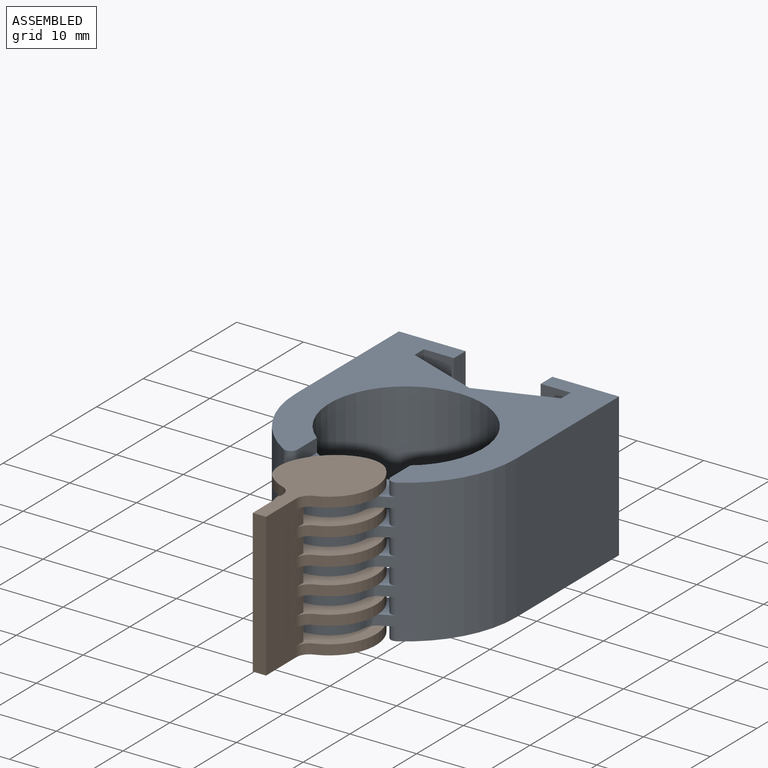
[diagram: assembled view]
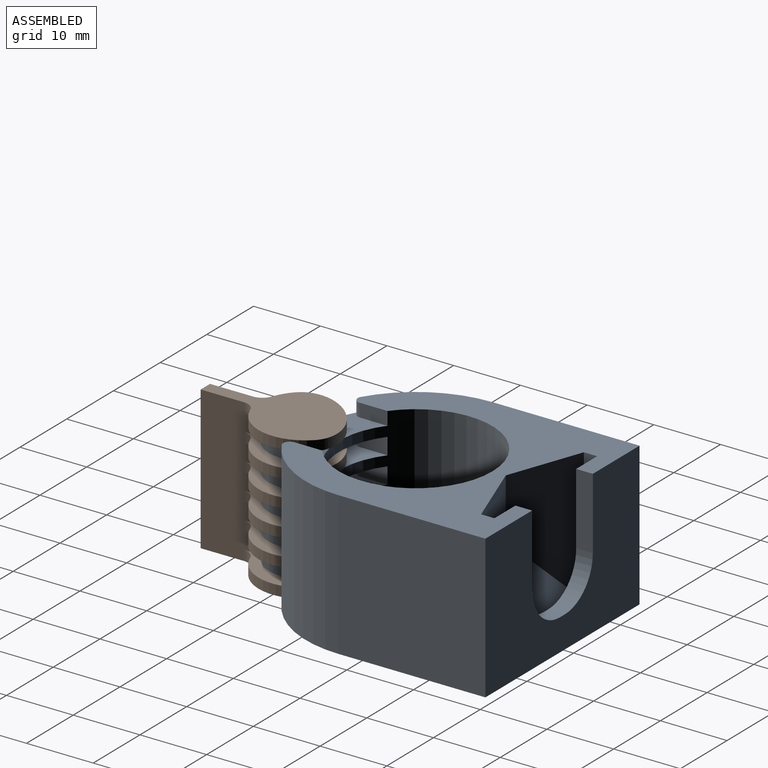
[diagram: assembled view, second angle]
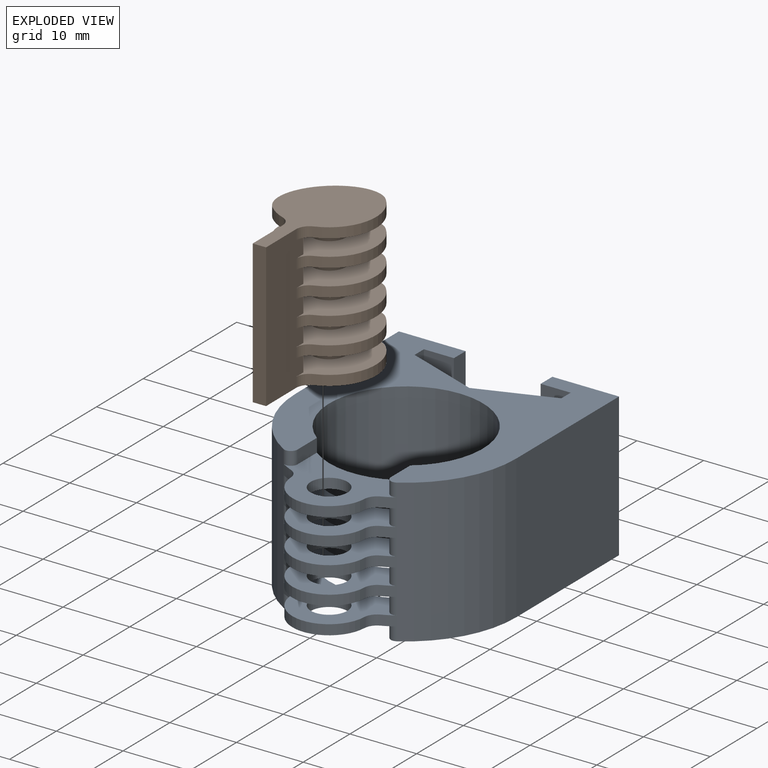
[diagram: exploded view]
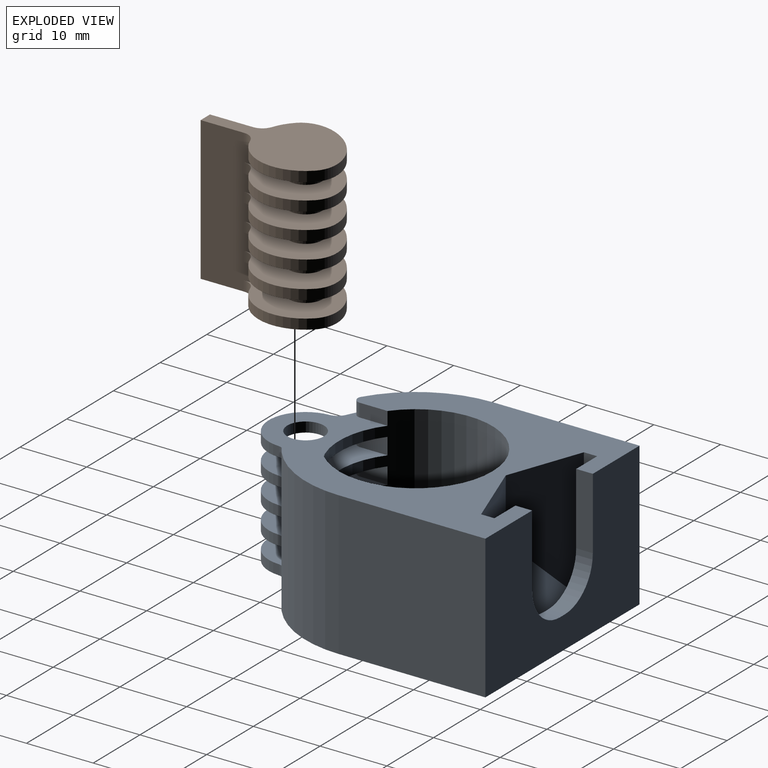
[diagram: exploded view, second angle]
ASSEMBLY  parts=2 mates=2
PART A: 74 faces, bbox 33x44x21.5 mm
  f0: plane 36.28x33mm, normal (0,0,-1), area 663.4mm2, adj f7,f13,f14,f35,f36,f52,f53,f54
  f1: plane 36.28x33mm, normal (0,0,1), area 542.9mm2, adj f3,f4,f7,f13,f14,f16,f17,f50
  f2: cylinder r=6mm len=6mm, axis (0,-1,0), area 23.6mm2, adj f3,f6,f56,f57
  f3: plane 10.75x2.5mm, normal (1,0,0), area 26.9mm2, adj f1,f2,f56,f57
  f4: plane 10.75x2.5mm, normal (-1,0,0), area 26.9mm2, adj f1,f5,f56,f57
  f5: cylinder r=6mm len=6mm, axis (0,-1,0), area 23.6mm2, adj f4,f6,f56,f57
  f6: plane 2.5x1mm, normal (0,0,1), area 2.5mm2, adj f2,f5,f56,f57
  f7: cylinder r=16.5mm len=21.5mm, axis (0,0,-1), area 380.4mm2, adj f0,f1,f15,f19,f21,f23,f25,f26
  f8: cylinder r=5.5mm len=10.98mm, axis (0,0,-1), area 25mm2, adj f31,f34,f61,f65
  f9: cylinder r=5.5mm len=10.98mm, axis (0,0,-1), area 25mm2, adj f28,f33,f62,f66
  f10: cylinder r=5.5mm len=10.98mm, axis (0,0,-1), area 25mm2, adj f23,f26,f63,f67
  f11: cylinder r=5.5mm len=10.98mm, axis (0,0,-1), area 25mm2, adj f21,f25,f64,f68
  f12: cylinder r=5.5mm len=10.98mm, axis (0,0,-1), area 25mm2, adj f15,f19,f69,f70
  f13: cylinder r=16.5mm len=21.5mm, axis (0,0,-1), area 380.4mm2, adj f0,f1,f15,f19,f21,f23,f25,f26
  f14: cylinder r=11.5mm len=23mm, axis (0,0,-1), area 1342.8mm2, adj f0,f1,f15,f16,f17,f18,f19,f20
  f15: plane 17.03x12.88mm, normal (0,0,1), area 102.6mm2, adj f7,f12,f13,f14,f16,f17,f37,f50
  f16: plane 4.15x2mm, normal (1,0,0), area 8.3mm2, adj f1,f14,f15,f50
  f17: plane 4.15x2mm, normal (-1,0,0), area 8.3mm2, adj f1,f14,f15,f51
  f18: plane 4.15x2.5mm, normal (-1,0,0), area 10.4mm2, adj f14,f19,f21,f49
  f19: plane 17.03x12.88mm, normal (0,0,-1), area 102.6mm2, adj f7,f12,f13,f14,f18,f20,f37,f48
  f20: plane 4.15x2.5mm, normal (1,0,0), area 10.4mm2, adj f14,f19,f21,f48
  f21: plane 17.03x12.88mm, normal (0,0,1), area 102.6mm2, adj f7,f11,f13,f14,f18,f20,f38,f48
  f22: plane 4.15x2.5mm, normal (1,0,0), area 10.4mm2, adj f14,f23,f25,f46
  f23: plane 17.03x12.88mm, normal (0,0,1), area 102.6mm2, adj f7,f10,f13,f14,f22,f24,f39,f46
  f24: plane 4.15x2.5mm, normal (-1,0,0), area 10.4mm2, adj f14,f23,f25,f47
  f25: plane 17.03x12.88mm, normal (0,0,-1), area 102.6mm2, adj f7,f11,f13,f14,f22,f24,f38,f46
  f26: plane 17.03x12.88mm, normal (0,0,-1), area 102.6mm2, adj f7,f10,f13,f14,f27,f29,f39,f44
  f27: plane 4.15x2.5mm, normal (1,0,0), area 10.4mm2, adj f14,f26,f28,f44
  f28: plane 17.03x12.88mm, normal (0,0,1), area 102.6mm2, adj f7,f9,f13,f14,f27,f29,f40,f44
  f29: plane 4.15x2.5mm, normal (-1,0,0), area 10.4mm2, adj f14,f26,f28,f45
  f30: plane 4.15x2.5mm, normal (1,0,0), area 10.4mm2, adj f14,f31,f33,f42
  f31: plane 17.03x12.88mm, normal (0,0,1), area 102.6mm2, adj f7,f8,f13,f14,f30,f32,f41,f42
  f32: plane 4.15x2.5mm, normal (-1,0,0), area 10.4mm2, adj f14,f31,f33,f43
  f33: plane 17.03x12.88mm, normal (0,0,-1), area 102.6mm2, adj f7,f9,f13,f14,f30,f32,f40,f42
  f34: plane 17.03x12.88mm, normal (0,0,-1), area 102.6mm2, adj f7,f8,f13,f14,f35,f36,f41,f52
  f35: plane 4.15x2mm, normal (1,0,0), area 8.3mm2, adj f0,f14,f34,f52
  f36: plane 4.15x2mm, normal (-1,0,0), area 8.3mm2, adj f0,f14,f34,f53
  f37: cylinder r=2.75mm len=5.5mm, axis (0,0,-1), area 25.9mm2, adj f15,f19
  f38: cylinder r=2.75mm len=5.5mm, axis (0,0,-1), area 25.9mm2, adj f21,f25
  f39: cylinder r=2.75mm len=5.5mm, axis (0,0,-1), area 25.9mm2, adj f23,f26
  f40: cylinder r=2.75mm len=5.5mm, axis (0,0,-1), area 25.9mm2, adj f28,f33
  f41: cylinder r=2.75mm len=5.5mm, axis (0,0,-1), area 25.9mm2, adj f31,f34
  f42: cylinder r=1mm len=2.5mm, axis (0,0,-1), area 5.3mm2, adj f7,f30,f31,f33
  f43: cylinder r=1mm len=2.5mm, axis (0,0,-1), area 5.3mm2, adj f13,f31,f32,f33
  f44: cylinder r=1mm len=2.5mm, axis (0,0,-1), area 5.3mm2, adj f7,f26,f27,f28
  f45: cylinder r=1mm len=2.5mm, axis (0,0,-1), area 5.3mm2, adj f13,f26,f28,f29
  f46: cylinder r=1mm len=2.5mm, axis (0,0,-1), area 5.3mm2, adj f7,f22,f23,f25
  f47: cylinder r=1mm len=2.5mm, axis (0,0,-1), area 5.3mm2, adj f13,f23,f24,f25
  f48: cylinder r=1mm len=2.5mm, axis (0,0,-1), area 5.3mm2, adj f7,f19,f20,f21
  f49: cylinder r=1mm len=2.5mm, axis (0,0,-1), area 5.3mm2, adj f13,f18,f19,f21
  f50: cylinder r=1mm len=2mm, axis (0,0,-1), area 4.2mm2, adj f1,f7,f15,f16
  f51: cylinder r=1mm len=2mm, axis (0,0,-1), area 4.2mm2, adj f1,f13,f15,f17
  f52: cylinder r=1mm len=2mm, axis (0,0,-1), area 4.2mm2, adj f0,f7,f34,f35
  f53: cylinder r=1mm len=2mm, axis (0,0,-1), area 4.2mm2, adj f0,f13,f34,f36
  f54: plane 22x21.5mm, normal (-1,0,0), area 473mm2, adj f0,f1,f7,f56
  f55: plane 22x21.5mm, normal (1,0,0), area 473mm2, adj f0,f1,f13,f56
  f56: plane 33x21.5mm, normal (0,1,0), area 507.2mm2, adj f0,f1,f2,f3,f4,f5,f6,f54
  f57: plane 22x20mm, normal (0,-1,0), area 237.7mm2, adj f1,f2,f3,f4,f5,f6,f58,f59
  f58: plane 20x2mm, normal (1,0,0), area 40mm2, adj f1,f57,f60,f71
  f59: plane 20x2mm, normal (-1,0,0), area 40mm2, adj f1,f57,f60,f73
  f60: plane 22x2mm, normal (0,0,1), area 44mm2, adj f57,f58,f59,f72
  f61: cylinder r=2mm len=1.72mm, axis (0,0,1), area 3.3mm2, adj f8,f13,f31,f34
  f62: cylinder r=2mm len=1.72mm, axis (0,0,1), area 3.3mm2, adj f9,f13,f28,f33
  f63: cylinder r=2mm len=1.72mm, axis (0,0,1), area 3.3mm2, adj f10,f13,f23,f26
  f64: cylinder r=2mm len=1.72mm, axis (0,0,1), area 3.3mm2, adj f11,f13,f21,f25
  f65: cylinder r=2mm len=1.72mm, axis (0,0,1), area 3.3mm2, adj f7,f8,f31,f34
  f66: cylinder r=2mm len=1.72mm, axis (0,0,1), area 3.3mm2, adj f7,f9,f28,f33
  f67: cylinder r=2mm len=1.72mm, axis (0,0,1), area 3.3mm2, adj f7,f10,f23,f26
  f68: cylinder r=2mm len=1.72mm, axis (0,0,1), area 3.3mm2, adj f7,f11,f21,f25
  f69: cylinder r=2mm len=1.72mm, axis (0,0,1), area 3.3mm2, adj f12,f13,f15,f19
  f70: cylinder r=2mm len=1.72mm, axis (0,0,1), area 3.3mm2, adj f7,f12,f15,f19
  f71: plane 20x11mm, normal (0.34,0.94,0), area 169.7mm2, adj f1,f58,f72,f73
  f72: plane 22x11mm, normal (0,0.94,0.34), area 128.8mm2, adj f60,f71,f73
  f73: plane 20x11mm, normal (-0.34,0.94,0), area 169.7mm2, adj f1,f59,f71,f72
PART B: 55 faces, bbox 18.2x16.4x21.5 mm
  f0: cylinder r=7.05mm len=10.02mm, axis (0,0,-1), area 21.2mm2, adj f14,f16,f17,f52
  f1: cylinder r=7.05mm len=10.02mm, axis (0,0,-1), area 21.2mm2, adj f18,f20,f21,f51
  f2: cylinder r=7.05mm len=10.02mm, axis (0,0,-1), area 21.2mm2, adj f22,f24,f25,f50
  f3: cylinder r=7.05mm len=10.02mm, axis (0,0,-1), area 21.2mm2, adj f26,f28,f29,f49
  f4: cylinder r=7.05mm len=10.02mm, axis (0,0,-1), area 21.2mm2, adj f10,f12,f13,f54
  f5: cylinder r=7.05mm len=10.02mm, axis (0,0,-1), area 21.2mm2, adj f31,f33,f34,f48
  f6: cylinder r=2.5mm len=5mm, axis (0,0,-1), area 39.3mm2, adj f24,f29
  f7: cylinder r=2.5mm len=5mm, axis (0,0,-1), area 39.3mm2, adj f20,f25
  f8: cylinder r=2.5mm len=5mm, axis (0,0,-1), area 39.3mm2, adj f16,f21
  f9: cylinder r=2.5mm len=5mm, axis (0,0,-1), area 39.3mm2, adj f12,f17
  f10: extruded ~14.1x5mm, area 28.6mm2, adj f4,f11,f12,f13
  f11: cylinder r=7.05mm len=3.13mm, axis (0,0,-1), area 4.9mm2, adj f10,f12,f13,f53
  f12: plane 14.1x12.05mm, normal (0,0,1), area 114.7mm2, adj f4,f9,f10,f11,f35,f40,f42,f53
  f13: plane 18.24x16.44mm, normal (0,0,-1), area 150.3mm2, adj f4,f10,f11,f40,f41,f42,f53,f54
  f14: extruded ~14.1x5mm, area 28.6mm2, adj f0,f15,f16,f17
  f15: cylinder r=7.05mm len=3.13mm, axis (0,0,-1), area 4.9mm2, adj f14,f16,f17,f47
  f16: plane 14.1x12.05mm, normal (0,0,1), area 114.7mm2, adj f0,f8,f14,f15,f36,f40,f42,f47
  f17: plane 14.1x12.05mm, normal (0,0,-1), area 114.7mm2, adj f0,f9,f14,f15,f35,f40,f42,f47
  f18: extruded ~14.1x5mm, area 28.6mm2, adj f1,f19,f20,f21
  f19: cylinder r=7.05mm len=3.13mm, axis (0,0,-1), area 4.9mm2, adj f18,f20,f21,f46
  f20: plane 14.1x12.05mm, normal (0,0,1), area 114.7mm2, adj f1,f7,f18,f19,f37,f40,f42,f46
  f21: plane 14.1x12.05mm, normal (0,0,-1), area 114.7mm2, adj f1,f8,f18,f19,f36,f40,f42,f46
  f22: extruded ~14.1x5mm, area 28.6mm2, adj f2,f23,f24,f25
  f23: cylinder r=7.05mm len=3.13mm, axis (0,0,-1), area 4.9mm2, adj f22,f24,f25,f45
  f24: plane 14.1x12.05mm, normal (0,0,1), area 114.7mm2, adj f2,f6,f22,f23,f38,f40,f42,f45
  f25: plane 14.1x12.05mm, normal (0,0,-1), area 114.7mm2, adj f2,f7,f22,f23,f37,f40,f42,f45
  f26: extruded ~14.1x5mm, area 28.6mm2, adj f3,f27,f28,f29
  f27: cylinder r=7.05mm len=3.13mm, axis (0,0,-1), area 4.9mm2, adj f26,f28,f29,f44
  f28: plane 14.1x12.05mm, normal (0,0,1), area 114.7mm2, adj f3,f26,f27,f30,f39,f40,f42,f44
  f29: plane 14.1x12.05mm, normal (0,0,-1), area 114.7mm2, adj f3,f6,f26,f27,f38,f40,f42,f44
  f30: cylinder r=2.5mm len=5mm, axis (0,0,-1), area 39.3mm2, adj f28,f34
  f31: extruded ~14.1x5mm, area 28.6mm2, adj f5,f32,f33,f34
  f32: cylinder r=7.05mm len=3.13mm, axis (0,0,-1), area 4.9mm2, adj f31,f33,f34,f43
  f33: plane 18.24x16.44mm, normal (0,0,1), area 150.3mm2, adj f5,f31,f32,f40,f41,f42,f43,f48
  f34: plane 14.1x12.05mm, normal (0,0,-1), area 114.7mm2, adj f5,f30,f31,f32,f39,f40,f42,f43
  f35: cylinder r=7.05mm len=2.5mm, axis (0,0,1), area 5mm2, adj f12,f17,f40,f42
  f36: cylinder r=7.05mm len=2.5mm, axis (0,0,1), area 5mm2, adj f16,f21,f40,f42
  f37: cylinder r=7.05mm len=2.5mm, axis (0,0,1), area 5mm2, adj f20,f25,f40,f42
  f38: cylinder r=7.05mm len=2.5mm, axis (0,0,1), area 5mm2, adj f24,f29,f40,f42
  f39: cylinder r=7.05mm len=2.5mm, axis (0,0,1), area 5mm2, adj f28,f34,f40,f42
  f40: plane 21.5x5.74mm, normal (0.72,-0.7,0), area 158.4mm2, adj f12,f13,f16,f17,f20,f21,f24,f25
  f41: plane 21.5x1.43mm, normal (0.7,0.72,0), area 43mm2, adj f13,f33,f40,f42
  f42: plane 21.5x5.74mm, normal (-0.72,0.7,0), area 158.4mm2, adj f12,f13,f16,f17,f20,f21,f24,f25
  f43: cylinder r=2mm len=2.28mm, axis (0,0,-1), area 3.7mm2, adj f32,f33,f34,f40
  f44: cylinder r=2mm len=2.28mm, axis (0,0,-1), area 3.7mm2, adj f27,f28,f29,f40
  f45: cylinder r=2mm len=2.28mm, axis (0,0,-1), area 3.7mm2, adj f23,f24,f25,f40
  f46: cylinder r=2mm len=2.28mm, axis (0,0,-1), area 3.7mm2, adj f19,f20,f21,f40
  f47: cylinder r=2mm len=2.28mm, axis (0,0,-1), area 3.7mm2, adj f15,f16,f17,f40
  f48: cylinder r=2mm len=2.27mm, axis (0,0,-1), area 3.7mm2, adj f5,f33,f34,f42
  f49: cylinder r=2mm len=2.27mm, axis (0,0,-1), area 3.7mm2, adj f3,f28,f29,f42
  f50: cylinder r=2mm len=2.27mm, axis (0,0,-1), area 3.7mm2, adj f2,f24,f25,f42
  f51: cylinder r=2mm len=2.27mm, axis (0,0,-1), area 3.7mm2, adj f1,f20,f21,f42
  f52: cylinder r=2mm len=2.27mm, axis (0,0,-1), area 3.7mm2, adj f0,f16,f17,f42
  f53: cylinder r=2mm len=2.28mm, axis (0,0,-1), area 3.7mm2, adj f11,f12,f13,f40
  f54: cylinder r=2mm len=2.27mm, axis (0,0,-1), area 3.7mm2, adj f4,f12,f13,f42
PLACE A t=(12.02,-12.26,-21.6)mm
PLACE B rot(axis=(0,0,-1),135.5deg) t=(12.02,-28.76,-21.6)mm
MATE planar B.f0 <-> A.f1  axis (0,0,1) through (12.02,-28.76,-0.1)mm
MATE revolute B.f6 <-> A.f37  axis (0,0,-1) through (12.02,-28.76,-2.85)mm
